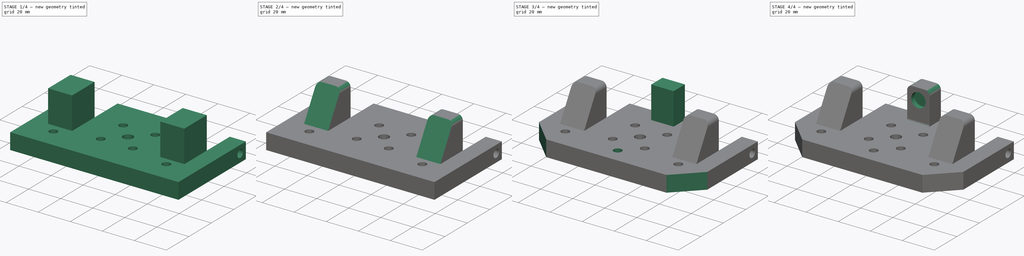
[diagram: build sequence overview — one tinted view per stage of 4, left to right]
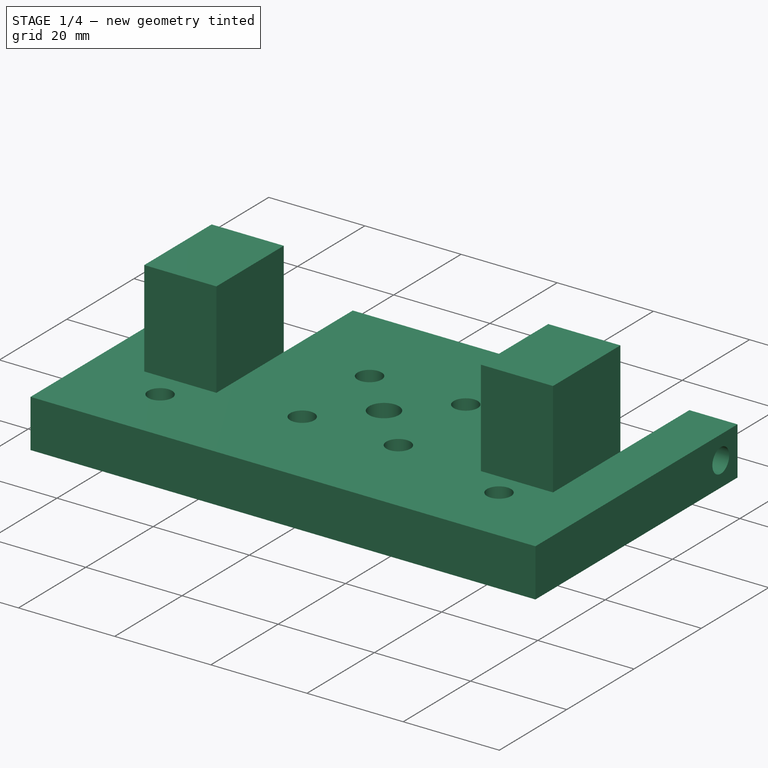
[diagram: stage 1 of 4 — iso view after this stage's code; geometry added in this stage tinted green]
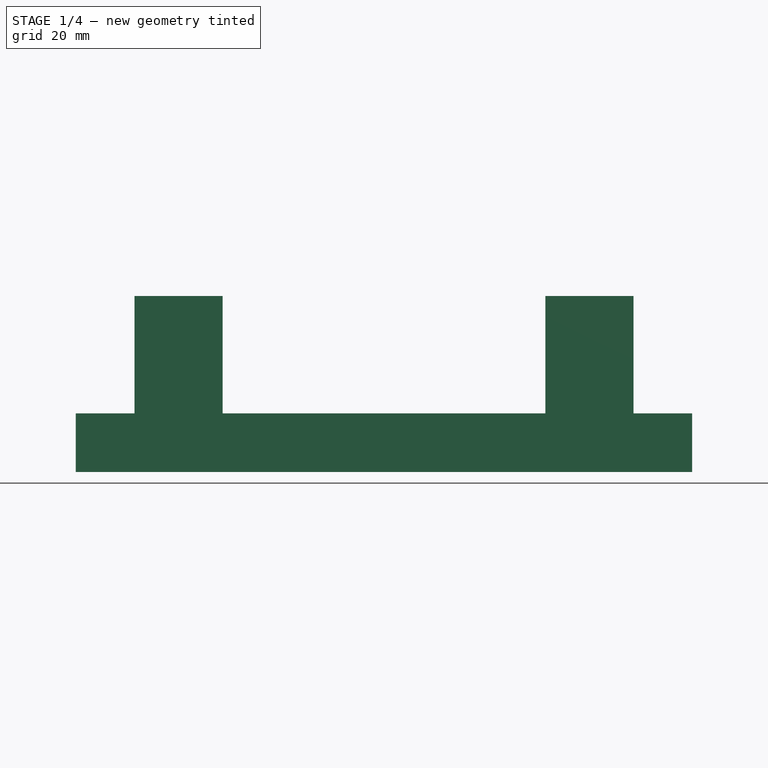
[diagram: stage 1 of 4 — front view after this stage's code; geometry added in this stage tinted green]
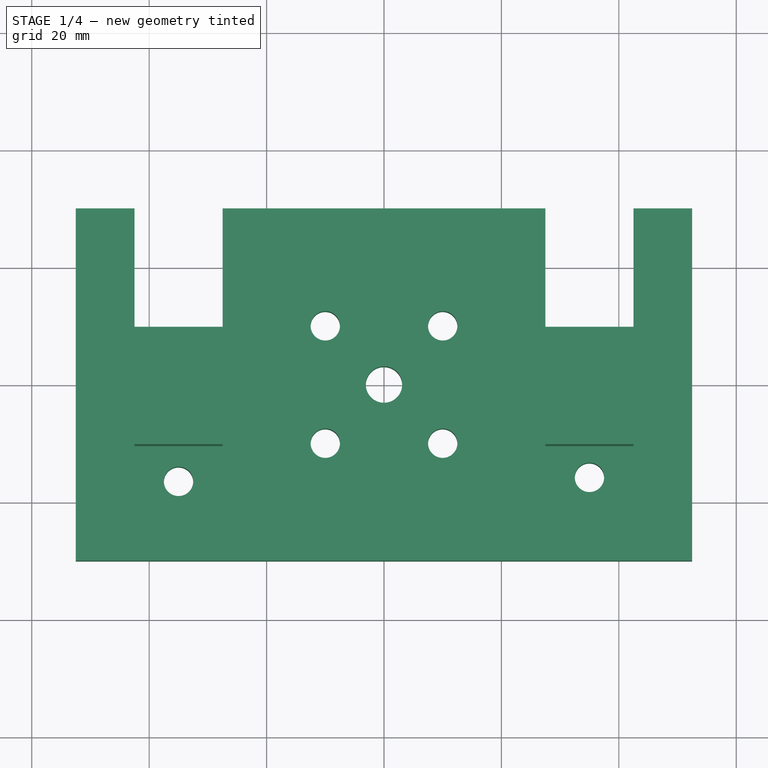
[diagram: stage 1 of 4 — top view after this stage's code; geometry added in this stage tinted green]
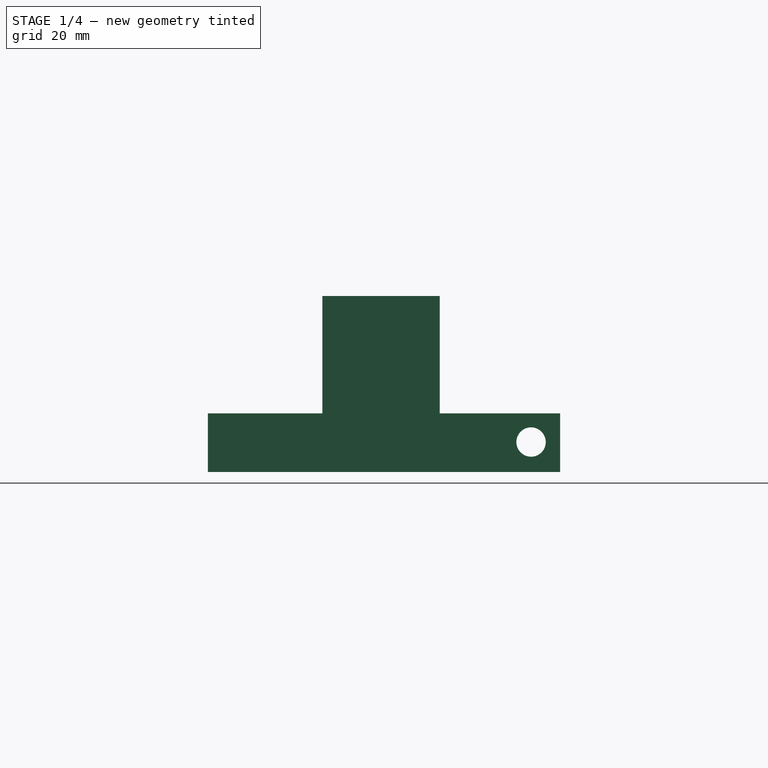
[diagram: stage 1 of 4 — right view after this stage's code; geometry added in this stage tinted green]
FCSTD DOCUMENT  (FreeCAD 0.18R16131 (Git))
Label: car1
License: All rights reserved
LicenseURL: http://en.wikipedia.org/wiki/All_rights_reserved
objects: Sketcher::SketchObject×8, PartDesign::Pocket×5, PartDesign::Pad×3, PartDesign::Fillet×3, PartDesign::Draft×2, PartDesign::Body×2, PartDesign::Chamfer×1
note: 32 computed .brp shape members not serialized (recipe doc carries the construction recipe); baked Part::Feature solids carry a one-line shape summary decoded from their .brp

FEATURE [Sketcher::SketchObject] Sketch
  MapMode = 5
  Support = -> [XY_Plane]
  expr: Constraints[70] = 33 / 2
  sketch-geometry (30):
    g0: Circle CenterX=-35 CenterY=-16.5 CenterZ=0 NormalX=0 NormalY=0 NormalZ=1 AngleXU=0 Radius=2.5
    g1: Circle CenterX=35 CenterY=-15.8195 CenterZ=0 NormalX=0 NormalY=0 NormalZ=1 AngleXU=0 Radius=2.5
    g2: LineSegment StartX=52.5 StartY=30 StartZ=0 EndX=52.5 EndY=-30 EndZ=0
    g3: LineSegment StartX=52.5 StartY=-30 StartZ=0 EndX=-52.5 EndY=-30 EndZ=0
    g4: LineSegment StartX=-52.5 StartY=-30 StartZ=0 EndX=-52.5 EndY=30 EndZ=0
    g5: LineSegment [constr] StartX=-52.5 StartY=30 StartZ=0 EndX=0 EndY=0 EndZ=0
    g6: LineSegment [constr] StartX=0 StartY=0 StartZ=0 EndX=52.5 EndY=30 EndZ=0
    g7: LineSegment [constr] StartX=35 StartY=-15.8195 StartZ=0 EndX=52.5 EndY=-15.8195 EndZ=0
    g8: LineSegment [constr] StartX=-35 StartY=-16.5 StartZ=0 EndX=-52.5 EndY=-16.5 EndZ=0
    g9: LineSegment [constr] StartX=-10 StartY=10 StartZ=0 EndX=-10 EndY=-10 EndZ=0
    g10: LineSegment [constr] StartX=-10 StartY=-10 StartZ=0 EndX=10 EndY=-10 EndZ=0
    g11: LineSegment [constr] StartX=10 StartY=-10 StartZ=0 EndX=10 EndY=10 EndZ=0
    g12: LineSegment [constr] StartX=10 StartY=10 StartZ=0 EndX=-10 EndY=10 EndZ=0
    g13: Circle [constr] CenterX=0 CenterY=0 CenterZ=0 NormalX=0 NormalY=0 NormalZ=1 AngleXU=0 Radius=14.1421
    g14: Circle CenterX=-10 CenterY=10 CenterZ=0 NormalX=0 NormalY=0 NormalZ=1 AngleXU=0 Radius=2.5
    g15: Circle CenterX=10 CenterY=10 CenterZ=0 NormalX=0 NormalY=0 NormalZ=1 AngleXU=0 Radius=2.5
    g16: Circle CenterX=10 CenterY=-10 CenterZ=0 NormalX=0 NormalY=0 NormalZ=1 AngleXU=0 Radius=2.5
    g17: Circle CenterX=-10 CenterY=-10 CenterZ=0 NormalX=0 NormalY=0 NormalZ=1 AngleXU=0 Radius=2.5
    g18: Circle CenterX=0 CenterY=0 CenterZ=0 NormalX=0 NormalY=0 NormalZ=1 AngleXU=0 Radius=3.1
    g19: LineSegment StartX=-52.5 StartY=30 StartZ=0 EndX=-42.5 EndY=30 EndZ=0
    g20: LineSegment StartX=-42.5 StartY=30 StartZ=0 EndX=-42.5 EndY=9.5 EndZ=0
    g21: LineSegment StartX=-42.5 StartY=9.5 StartZ=0 EndX=-27.5 EndY=9.5 EndZ=0
    g22: LineSegment StartX=52.5 StartY=30 StartZ=0 EndX=42.5 EndY=30 EndZ=0
    g23: LineSegment StartX=42.5 StartY=30 StartZ=0 EndX=42.5 EndY=9.5 EndZ=0
    g24: LineSegment StartX=42.5 StartY=9.5 StartZ=0 EndX=27.5 EndY=9.5 EndZ=0
    g25: LineSegment StartX=27.5 StartY=9.5 StartZ=0 EndX=27.5 EndY=30 EndZ=0
    g26: LineSegment StartX=27.5 StartY=30 StartZ=0 EndX=-27.5 EndY=30 EndZ=0
    g27: LineSegment StartX=-27.5 StartY=30 StartZ=0 EndX=-27.5 EndY=9.5 EndZ=0
    g28: LineSegment [constr] StartX=-35 StartY=-16.5 StartZ=0 EndX=-35 EndY=-30 EndZ=0
    g29: LineSegment [constr] StartX=35 StartY=-15.8195 StartZ=0 EndX=35 EndY=-30 EndZ=0
  constraints (81):
    c: Radius(g1) = 2.5
    c: Equal(g1,g0)
    c: Coincident(g2,g3)
    c: Coincident(g3,g4)
    c: Horizontal(g3)
    c: Vertical(g2)
    c: Vertical(g4)
    c: Coincident(g6,g-1)
    c: Coincident(g5,g-1)
    c: DistanceX(g4,g2) = 105
    c: Equal(g5,g6)
    c: Coincident(g7,g1)
    c: PointOnObject(g7,g2)
    c: Horizontal(g7)
    c: Coincident(g8,g0)
    c: PointOnObject(g8,g4)
    c: Horizontal(g8)
    c: Coincident(g9,g10)
    c: Coincident(g10,g11)
    c: Coincident(g11,g12)
    c: Coincident(g12,g9)
    c: Equal(g9,g10)
    c: Equal(g9,g11)
    c: Equal(g9,g12)
    c: PointOnObject(g9,g13)
    c: PointOnObject(g10,g13)
    c: PointOnObject(g11,g13)
    c: PointOnObject(g12,g13)
    c: Coincident(g13,g-1)
    c: Horizontal(g12)
    c: DistanceX(g12,g12) = 20
    c: Coincident(g14,g9)
    c: Coincident(g15,g11)
    c: Coincident(g16,g10)
    c: Coincident(g17,g9)
    c: Radius(g17) = 2.5
    c: Equal(g17,g16)
    c: Equal(g17,g15)
    c: Equal(g17,g14)
    c: Coincident(g18,g-1)
    c: Radius(g18) = 3.1
    c: Coincident(g19,g4)
    c: Horizontal(g19)
    c: Coincident(g20,g19)
    c: Vertical(g20)
    c: Coincident(g21,g20)
    c: Horizontal(g21)
    c: Coincident(g22,g2)
    c: Horizontal(g22)
    c: Coincident(g23,g22)
    c: Vertical(g23)
    c: Coincident(g24,g23)
    c: Horizontal(g24)
    c: Coincident(g25,g24)
    c: Vertical(g25)
    c: Coincident(g26,g25)
    c: Horizontal(g26)
    c: Coincident(g27,g26)
    c: Vertical(g27)
    c: Coincident(g21,g27)
    c: Coincident(g5,g4)
    c: Coincident(g6,g2)
    c: Equal(g2,g4)
    c: Equal(g19,g22)
    c: DistanceX(g19,g19) = 10
    c: Equal(g27,g20)
    c: Equal(g23,g27)
    c: Equal(g21,g24)
    c: DistanceX(g19,g26) = 15
    c: DistanceY(g20,g20) = 20.5
    c: DistanceY(g0,g18) = 16.5
    c: DistanceX(g8,g8) = 17.5
    c: Equal(g7,g8)
    c: DistanceY(g18,g4) = 30
    c: Coincident(g28,g0)
    c: PointOnObject(g28,g3)
    c: Coincident(g29,g1)
    c: PointOnObject(g29,g3)
    c: Vertical(g29)
    c: Vertical(g28)
    c: DistanceY(g3,g18) = 30
FEATURE [PartDesign::Pad] Pad
  Length = 10
  Length2 = 100
  Profile = -> Sketch
  Type = 0
FEATURE [Sketcher::SketchObject] Sketch001
  ExternalGeometry = -> [Pad]
  MapMode = 5
  Placement = pos=(-52.5,0,0) rot=(0.57735,-0.57735,-0.57735;2.0944rad)
  Support = -> [Pad]
  sketch-geometry (3):
    g0: LineSegment [constr] StartX=-30 StartY=10 StartZ=0 EndX=-25 EndY=5 EndZ=0
    g1: LineSegment [constr] StartX=-25 StartY=5 StartZ=0 EndX=-30 EndY=0 EndZ=0
    g2: Circle CenterX=-25.05 CenterY=5.11225 CenterZ=0 NormalX=0 NormalY=0 NormalZ=1 AngleXU=0 Radius=2.5
  constraints (6):
    c: Equal(g1,g0)
    c: Perpendicular(g1,g0)
    c: Coincident(g1,g0)
    c: Coincident(g0,g-3)
    c: Coincident(g1,g-3)
    c: Radius(g2) = 2.5
FEATURE [PartDesign::Pocket] Pocket
  BaseFeature = -> Pad
  Length = 5
  Length2 = 100
  Profile = -> Sketch001
  Type = 1
FEATURE [PartDesign::Draft] Draft
  Angle = 30
  Base = -> Pocket [Face15,Face11]
  BaseFeature = -> Pocket
  NeutralPlane = -> Pocket [Face4]
FEATURE [PartDesign::Body] Body001
  Group = -> [Sketch002,Pad001,Sketch003,Pocket001,Fillet,Sketch004,Pocket002,Fillet001]
  Origin = -> Origin001
  Placement = pos=(-35,0,0) rot=(0,0,1;0rad)
  Tip = -> Fillet001
FEATURE [Sketcher::SketchObject] Sketch005
  MapMode = 5
  Placement = pos=(0,0,10) rot=(0,0,1;0rad)
  Support = -> [Draft]
  sketch-geometry (8):
    g0: LineSegment StartX=-42.5 StartY=-10.5 StartZ=0 EndX=-27.5 EndY=-10.5 EndZ=0
    g1: LineSegment StartX=-27.5 StartY=-10.5 StartZ=0 EndX=-27.5 EndY=9.5 EndZ=0
    g2: LineSegment StartX=-27.5 StartY=9.5 StartZ=0 EndX=-42.5 EndY=9.5 EndZ=0
    g3: LineSegment StartX=-42.5 StartY=9.5 StartZ=0 EndX=-42.5 EndY=-10.5 EndZ=0
    g4: LineSegment StartX=27.5 StartY=9.5 StartZ=0 EndX=42.5 EndY=9.5 EndZ=0
    g5: LineSegment StartX=42.5 StartY=9.5 StartZ=0 EndX=42.5 EndY=-10.5 EndZ=0
    g6: LineSegment StartX=42.5 StartY=-10.5 StartZ=0 EndX=27.5 EndY=-10.5 EndZ=0
    g7: LineSegment StartX=27.5 StartY=-10.5 StartZ=0 EndX=27.5 EndY=9.5 EndZ=0
  constraints (24):
    c: Coincident(g0,g1)
    c: Coincident(g1,g2)
    c: Coincident(g2,g3)
    c: Coincident(g3,g0)
    c: Horizontal(g0)
    c: Horizontal(g2)
    c: Vertical(g1)
    c: Vertical(g3)
    c: DistanceX(g2,g2) = 15
    c: Coincident(g4,g5)
    c: Coincident(g5,g6)
    c: Coincident(g6,g7)
    c: Coincident(g7,g4)
    c: Horizontal(g4)
    c: Horizontal(g6)
    c: Vertical(g5)
    c: Vertical(g7)
    c: Equal(g4,g2)
    c: Equal(g7,g3)
    c: DistanceY(g3,g3) = 20
    c: DistanceX(g1,g-1) = 27.5
    c: DistanceX(g-1,g4) = 27.5
    c: DistanceY(g-1,g1) = 9.5
    c: DistanceY(g-1,g4) = 9.5
FEATURE [PartDesign::Pad] Pad002
  BaseFeature = -> Draft
  Length = 20
  Length2 = 100
  Profile = -> Sketch005
  Type = 0
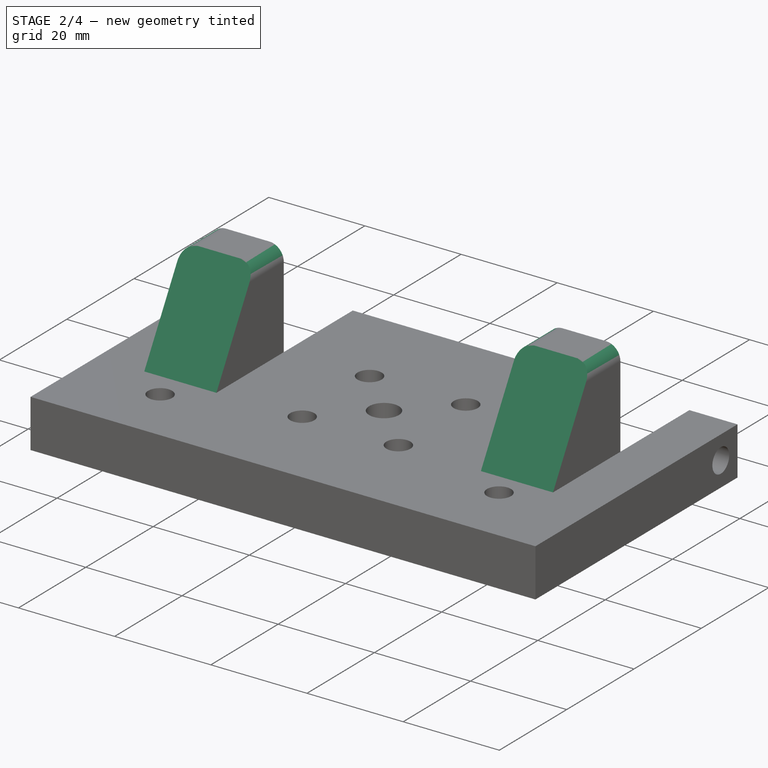
[diagram: stage 2 of 4 — iso view after this stage's code; geometry added in this stage tinted green]
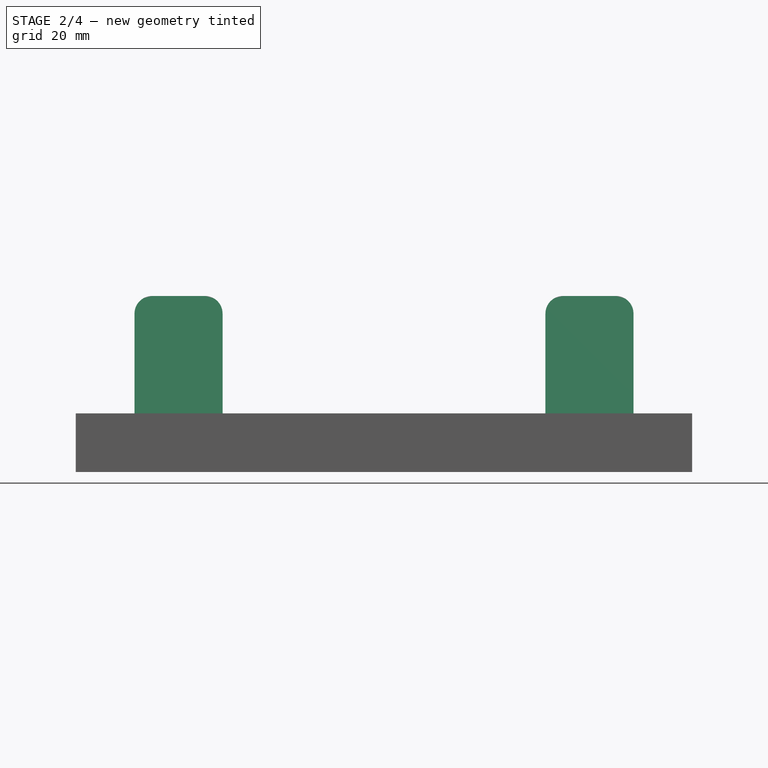
[diagram: stage 2 of 4 — front view after this stage's code; geometry added in this stage tinted green]
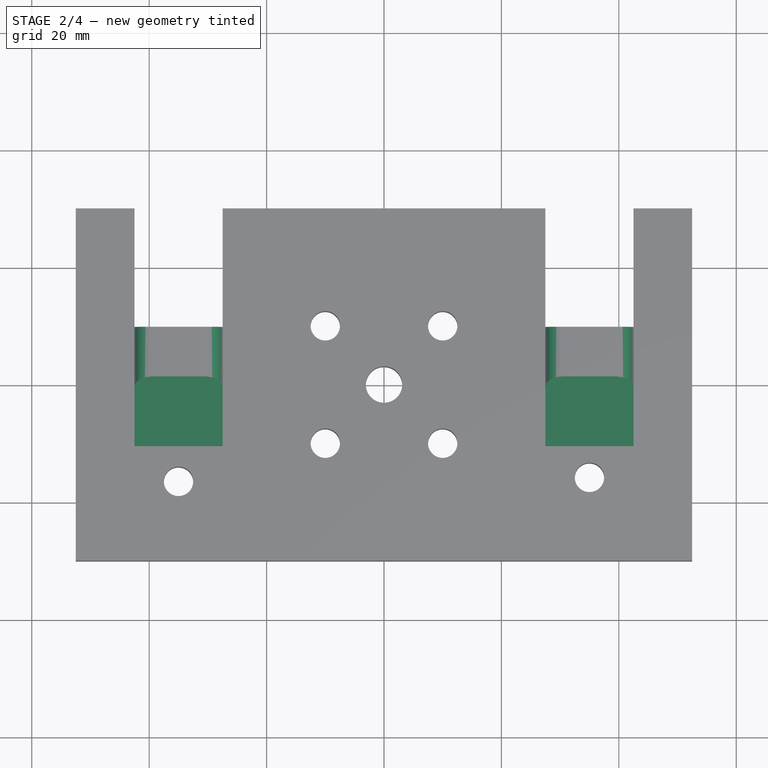
[diagram: stage 2 of 4 — top view after this stage's code; geometry added in this stage tinted green]
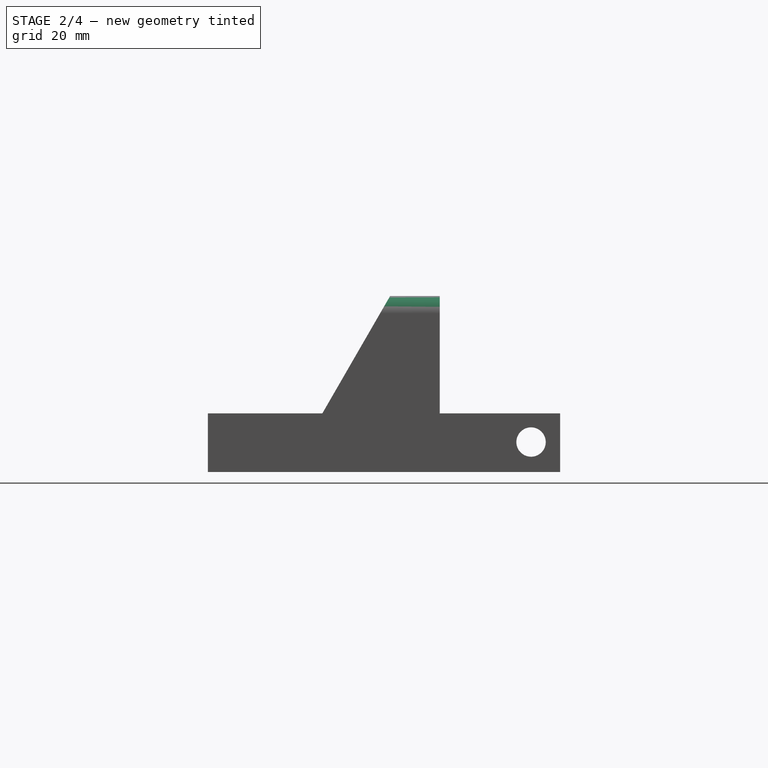
[diagram: stage 2 of 4 — right view after this stage's code; geometry added in this stage tinted green]
FEATURE [Sketcher::SketchObject] Sketch006
  ExternalGeometry = -> [Pad002]
  MapMode = 5
  Placement = pos=(0,9.5,0) rot=(0,0.707107,0.707107;3.14159rad)
  Support = -> [Pad002]
  sketch-geometry (6):
    g0: LineSegment [constr] StartX=-42.5 StartY=30 StartZ=0 EndX=-35 EndY=22.5 EndZ=0
    g1: LineSegment [constr] StartX=-27.5 StartY=30 StartZ=0 EndX=-35 EndY=22.5 EndZ=0
    g2: LineSegment [constr] StartX=27.5 StartY=30 StartZ=0 EndX=35 EndY=22.5 EndZ=0
    g3: LineSegment [constr] StartX=42.5 StartY=30 StartZ=0 EndX=35 EndY=22.5 EndZ=0
    g4: Circle CenterX=-35 CenterY=22.5 CenterZ=0 NormalX=0 NormalY=0 NormalZ=1 AngleXU=0 Radius=4.5
    g5: Circle CenterX=35 CenterY=22.5 CenterZ=0 NormalX=0 NormalY=0 NormalZ=1 AngleXU=0 Radius=4.5
  constraints (14):
    c: Coincident(g0,g-3)
    c: Coincident(g1,g-3)
    c: Coincident(g1,g0)
    c: Coincident(g2,g-4)
    c: Coincident(g3,g-4)
    c: Coincident(g3,g2)
    c: Equal(g3,g2)
    c: Equal(g2,g1)
    c: Equal(g1,g0)
    c: Perpendicular(g1,g0)
    c: Coincident(g4,g0)
    c: Coincident(g5,g2)
    c: Radius(g5) = 4.5
    c: Equal(g5,g4)
FEATURE [PartDesign::Pocket] Pocket003
  BaseFeature = -> Pad002
  Length = 3
  Length2 = 100
  Profile = -> Sketch006
  Type = 0
FEATURE [PartDesign::Fillet] Fillet002
  Base = -> Pocket003 [Edge84,Edge80,Edge77,Edge73]
  BaseFeature = -> Pocket003
  Radius = 3
FEATURE [PartDesign::Draft] Draft001
  Angle = 30
  Base = -> Fillet002 [Face17,Face5]
  BaseFeature = -> Fillet002
  NeutralPlane = -> Fillet002 [Face4]
  Reversed = true
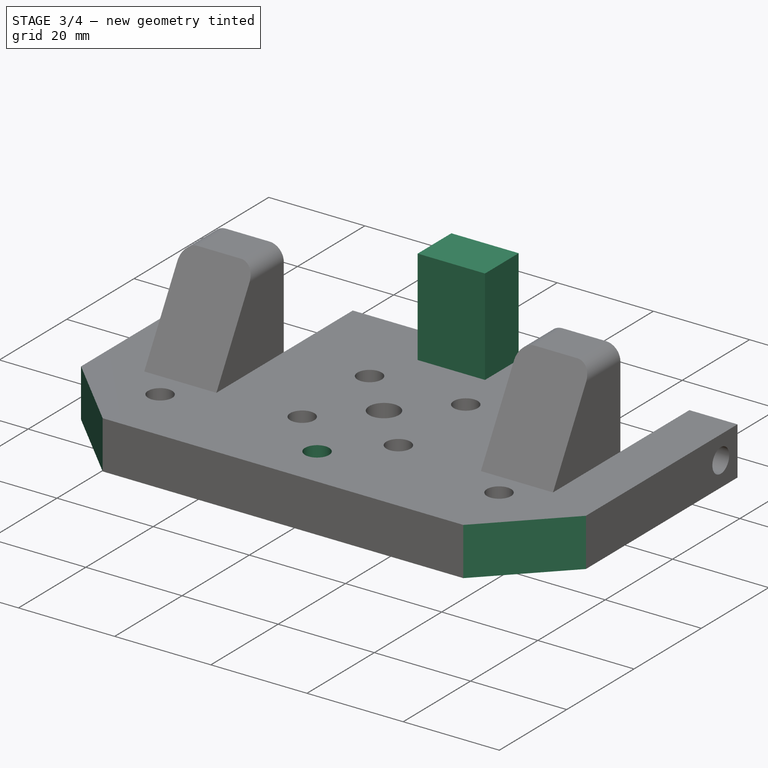
[diagram: stage 3 of 4 — iso view after this stage's code; geometry added in this stage tinted green]
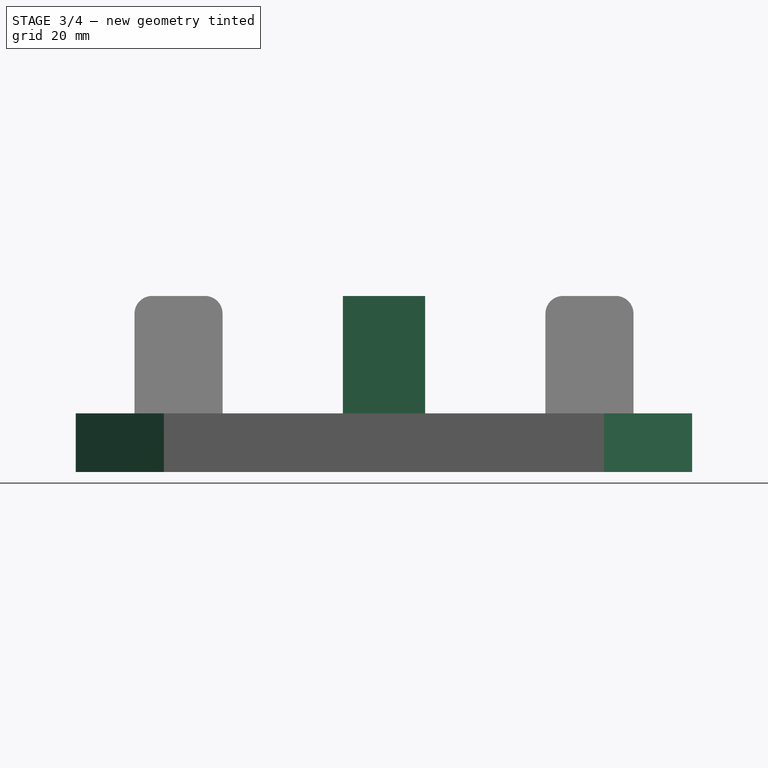
[diagram: stage 3 of 4 — front view after this stage's code; geometry added in this stage tinted green]
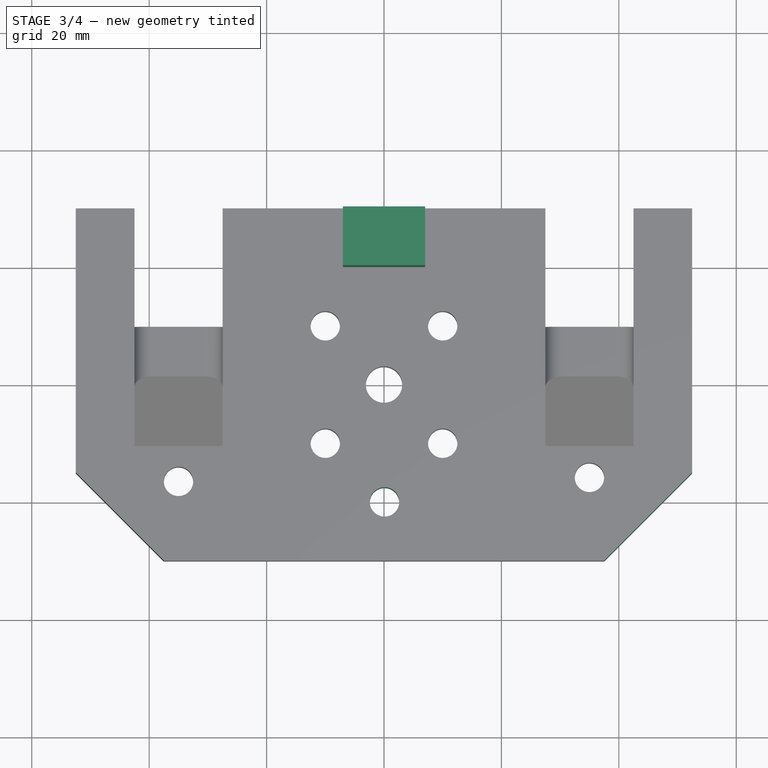
[diagram: stage 3 of 4 — top view after this stage's code; geometry added in this stage tinted green]
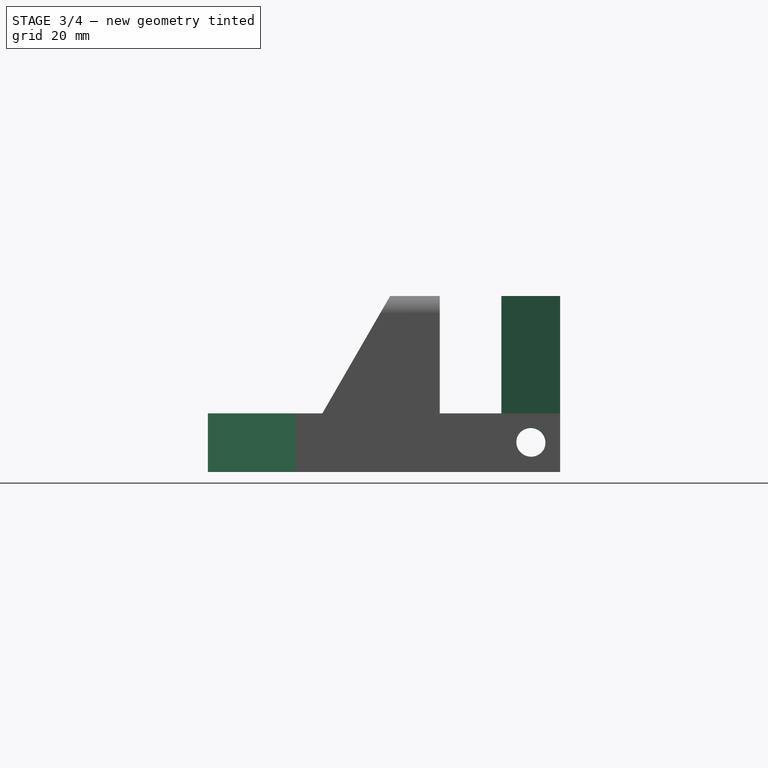
[diagram: stage 3 of 4 — right view after this stage's code; geometry added in this stage tinted green]
FEATURE [Sketcher::SketchObject] Sketch002
  MapMode = 5
  Placement = pos=(0,0,0) rot=(0.57735,0.57735,0.57735;2.0944rad)
  Support = -> [YZ_Plane001]
  sketch-geometry (7):
    g0: LineSegment StartX=10 StartY=10 StartZ=0 EndX=20 EndY=10 EndZ=0
    g1: LineSegment StartX=20 StartY=10 StartZ=0 EndX=20 EndY=30 EndZ=0
    g2: LineSegment StartX=20 StartY=30 StartZ=0 EndX=30 EndY=30 EndZ=0
    g3: LineSegment StartX=30 StartY=30 StartZ=0 EndX=30 EndY=0 EndZ=0
    g4: LineSegment StartX=30 StartY=0 StartZ=0 EndX=5 EndY=0 EndZ=0
    g5: Circle CenterX=25 CenterY=5 CenterZ=0 NormalX=0 NormalY=0 NormalZ=1 AngleXU=0 Radius=2.5
    g6: LineSegment StartX=10 StartY=10 StartZ=0 EndX=5 EndY=0 EndZ=0
  constraints (21):
    c: PointOnObject(g4,g-1)
    c: Horizontal(g0)
    c: Coincident(g0,g1)
    c: Vertical(g1)
    c: Coincident(g1,g2)
    c: Horizontal(g2)
    c: Coincident(g2,g3)
    c: PointOnObject(g3,g-1)
    c: Vertical(g3)
    c: Coincident(g3,g4)
    c: DistanceX(g4,g4) = 25
    c: DistanceX(g5,g3) = 5
    c: DistanceY(g3,g5) = 5
    c: Radius(g5) = 2.5
    c: DistanceY(g4,g0) = 10
    c: DistanceY(g1,g1) = 20
    c: DistanceX(g2,g2) = 10
    c: DistanceX(g-1,g3) = 30
    c: Coincident(g6,g0)
    c: Coincident(g6,g4)
    c: DistanceX(g0,g0) = 10
FEATURE [PartDesign::Pad] Pad001
  Length = 14
  Length2 = 100
  Midplane = true
  Placement = pos=(0,0,0) rot=(0.57735,0.57735,0.57735;2.0944rad)
  Profile = -> Sketch002
  Type = 0
FEATURE [PartDesign::Chamfer] Chamfer
  Base = -> Draft001 [Edge73,Edge76]
  BaseFeature = -> Draft001
  Size = 15
FEATURE [Sketcher::SketchObject] Sketch007
  MapMode = 5
  Placement = pos=(0,0,10) rot=(0,0,1;0rad)
  Support = -> [Chamfer]
  sketch-geometry (1):
    g0: Circle CenterX=0.088424 CenterY=-20 CenterZ=0 NormalX=0 NormalY=0 NormalZ=1 AngleXU=0 Radius=2.5
  constraints (2):
    c: Radius(g0) = 2.5
    c: DistanceY(g0,g-1) = 20
FEATURE [PartDesign::Pocket] Pocket004
  BaseFeature = -> Chamfer
  Length = 5
  Length2 = 100
  Profile = -> Sketch007
  Type = 1
FEATURE [PartDesign::Body] Body
  Group = -> [Sketch,Pad,Sketch001,Pocket,Draft,Sketch005,Pad002,Sketch006,Pocket003,Fillet002,Draft001,Chamfer,Sketch007,Pocket004]
  Origin = -> Origin
  Tip = -> Pocket004
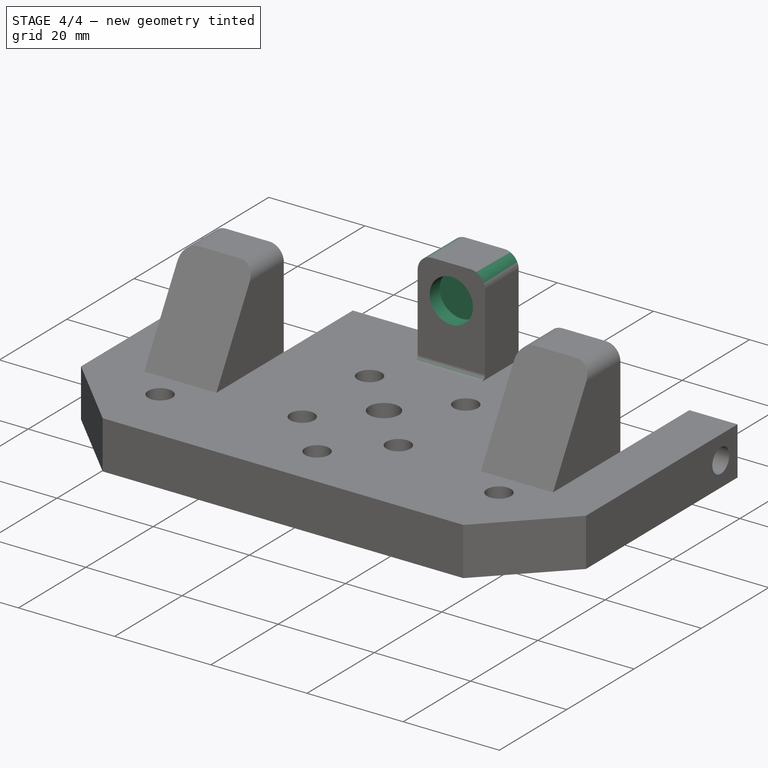
[diagram: stage 4 of 4 — iso view after this stage's code; geometry added in this stage tinted green]
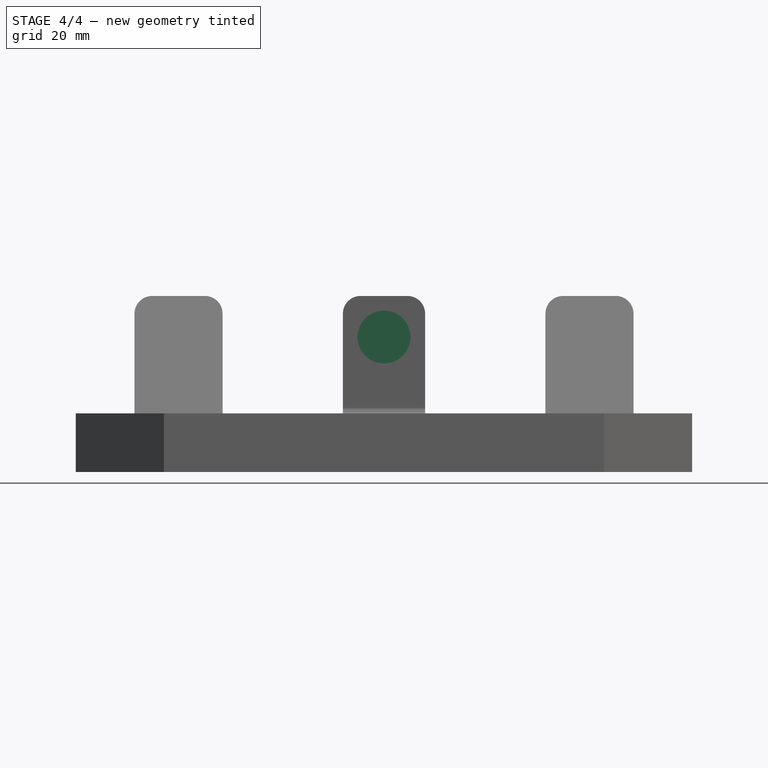
[diagram: stage 4 of 4 — front view after this stage's code; geometry added in this stage tinted green]
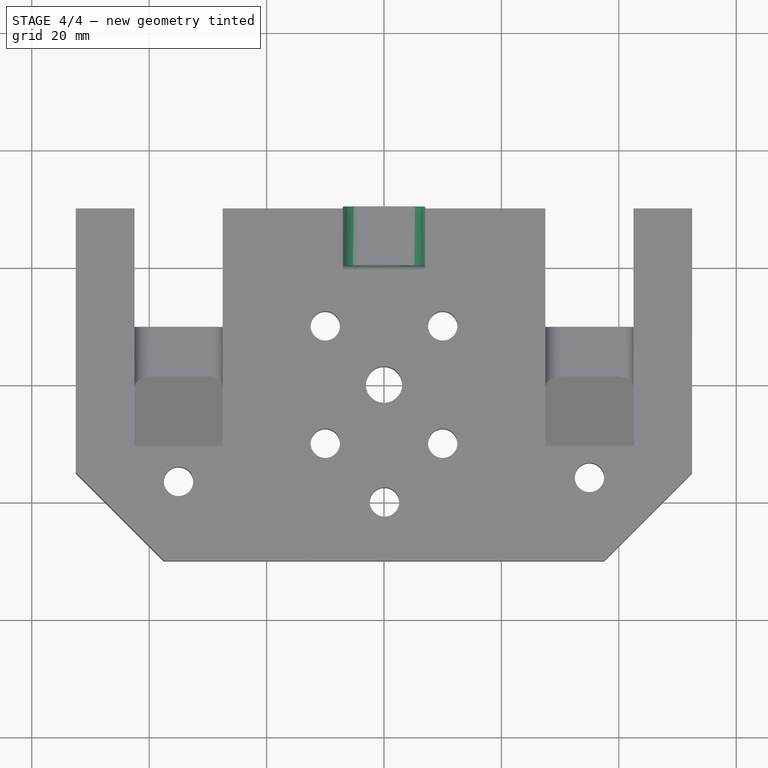
[diagram: stage 4 of 4 — top view after this stage's code; geometry added in this stage tinted green]
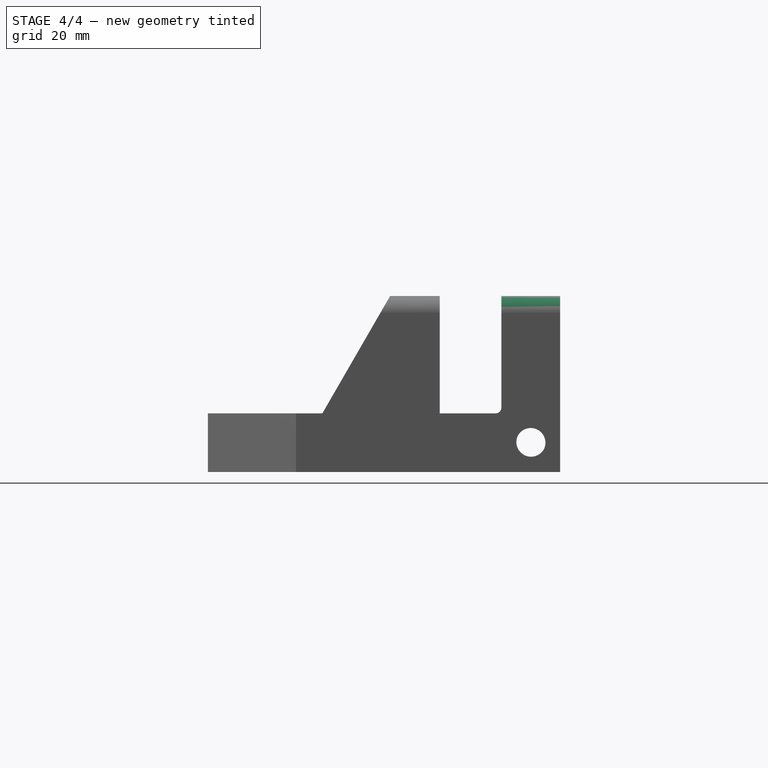
[diagram: stage 4 of 4 — right view after this stage's code; geometry added in this stage tinted green]
FEATURE [Sketcher::SketchObject] Sketch003
  ExternalGeometry = -> [Pad001]
  MapMode = 5
  Placement = pos=(8.9e-15,20,-6.7e-15) rot=(-0.57735,-0.57735,0.57735;4.18879rad)
  Support = -> [Pad001]
  sketch-geometry (3):
    g0: LineSegment [constr] StartX=-30 StartY=7 StartZ=0 EndX=-23 EndY=-1.42e-14 EndZ=0
    g1: LineSegment [constr] StartX=-23 StartY=-1.39e-14 StartZ=0 EndX=-30 EndY=-7 EndZ=0
    g2: Circle CenterX=-23 CenterY=-1.39e-14 CenterZ=0 NormalX=0 NormalY=0 NormalZ=1 AngleXU=0 Radius=4.5
  constraints (7):
    c: Equal(g1,g0)
    c: Perpendicular(g1,g0)
    c: Coincident(g0,g-3)
    c: Coincident(g0,g1)
    c: Coincident(g1,g-3)
    c: Radius(g2) = 4.5
    c: Coincident(g2,g0)
FEATURE [PartDesign::Pocket] Pocket001
  BaseFeature = -> Pad001
  Length = 3
  Length2 = 100
  Placement = pos=(0,0,0) rot=(0.57735,0.57735,0.57735;2.0944rad)
  Profile = -> Sketch003
  Type = 0
FEATURE [PartDesign::Fillet] Fillet
  Base = -> Pocket001 [Edge12,Edge16]
  BaseFeature = -> Pocket001
  Placement = pos=(0,0,0) rot=(0.57735,0.57735,0.57735;2.0944rad)
  Radius = 3
FEATURE [Sketcher::SketchObject] Sketch004
  MapMode = 5
  Placement = pos=(-7.2e-15,6.7e-15,10) rot=(0,0,-1;1.5708rad)
  Support = -> [Fillet]
  sketch-geometry (1):
    g0: Circle CenterX=-15.3 CenterY=0 CenterZ=0 NormalX=0 NormalY=0 NormalZ=1 AngleXU=0 Radius=2.5
  constraints (3):
    c: DistanceX(g0,g-1) = 15.3
    c: Radius(g0) = 2.5
    c: PointOnObject(g0,g-1)
FEATURE [PartDesign::Pocket] Pocket002
  BaseFeature = -> Fillet
  Length = 5
  Length2 = 100
  Placement = pos=(0,0,0) rot=(0.57735,0.57735,0.57735;2.0944rad)
  Profile = -> Sketch004
  Type = 1
FEATURE [PartDesign::Fillet] Fillet001
  Base = -> Pocket002 [Edge3]
  BaseFeature = -> Pocket002
  Placement = pos=(0,0,0) rot=(0.57735,0.57735,0.57735;2.0944rad)
  Radius = 1
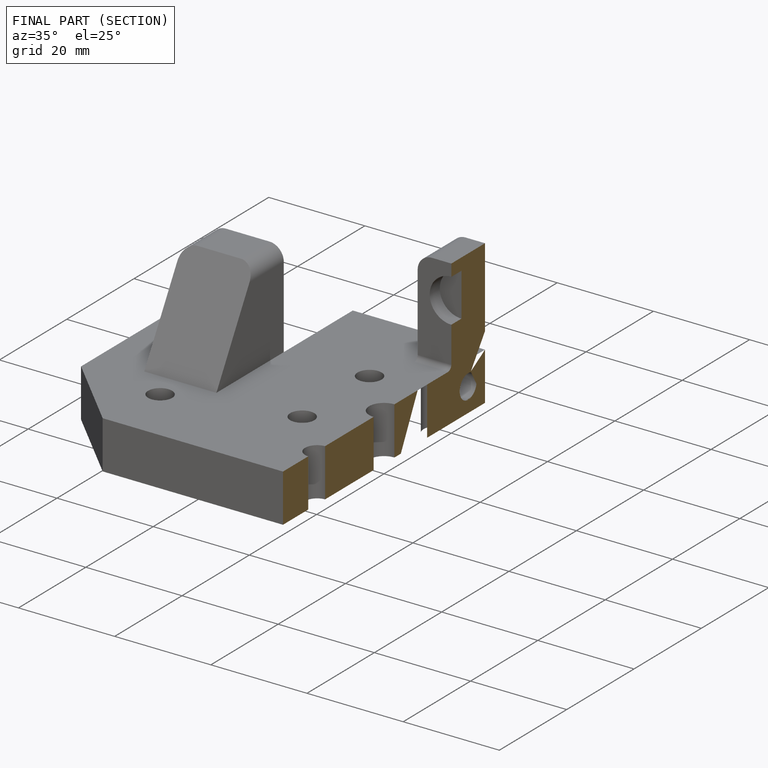
[diagram: finished part — half-section view (interior)]
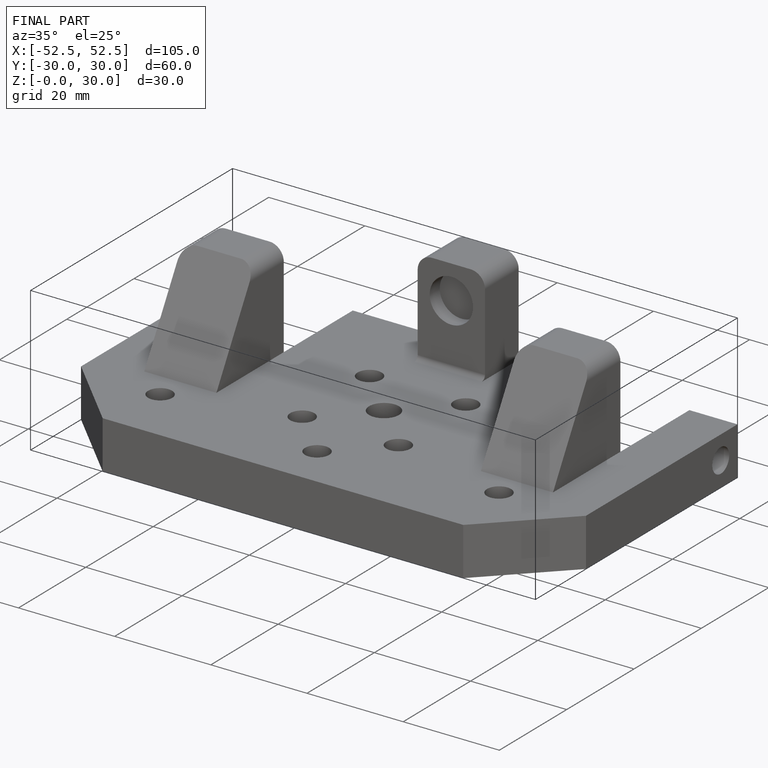
[diagram: finished part — iso view with bounding-box wireframe]
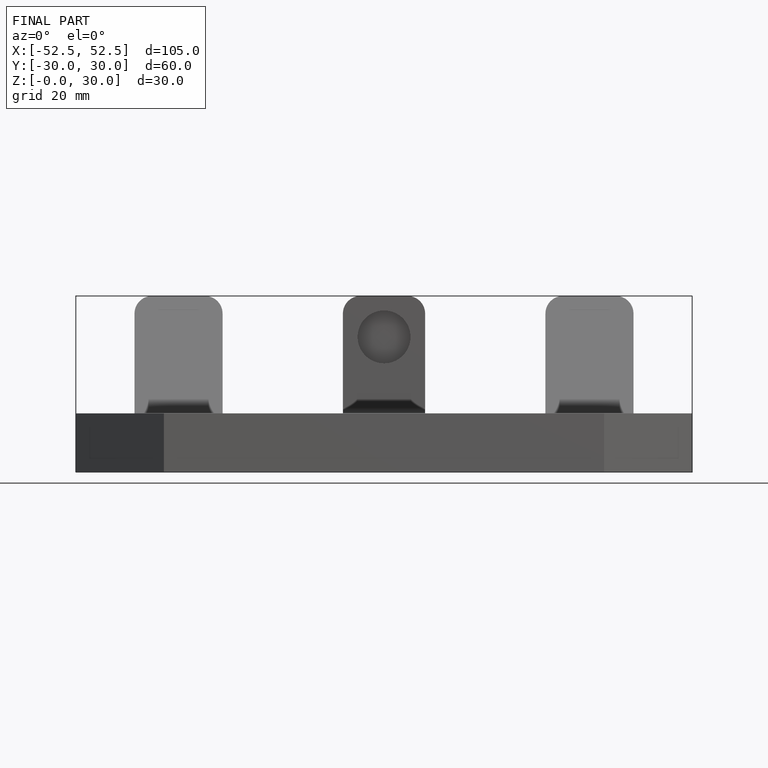
[diagram: finished part — front view with bounding-box wireframe]
